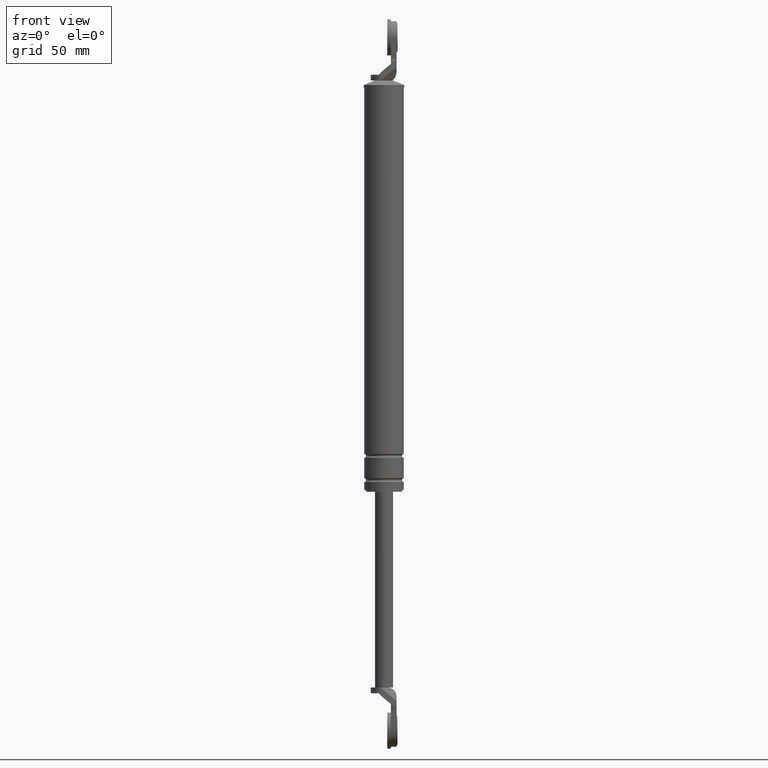
[diagram: clean part render]
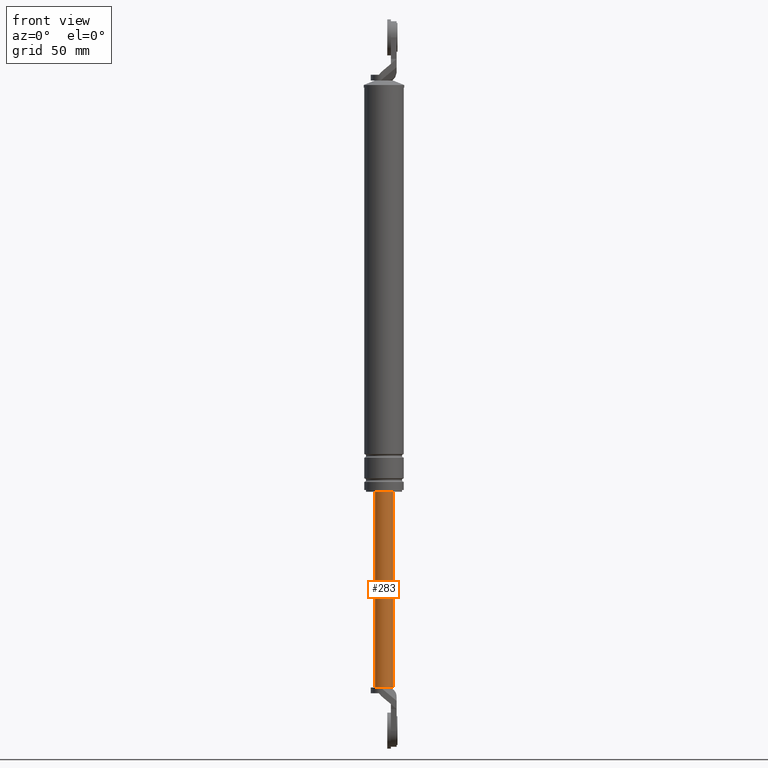
[diagram: same view with one face highlighted and labeled with its STEP entity id]
A machine part, front view. The second image highlights one B-rep face of the part: STEP entity #283.
In plain terms, the highlighted cylindrical surface (edge-blend (fillet) strip) has radius 5 mm, axis along (0, 0, 1).
Its self-contained STEP definition (entity closure, byte-faithful):
#283=ADVANCED_FACE('',(#1087),#1086,.T.);
#1086=CYLINDRICAL_SURFACE('',#1750,5.00000000000E+000);
#1087=FACE_OUTER_BOUND('',#1751,.T.);
#1747=CARTESIAN_POINT('',(0.00000000000E+000,3.58204186421E-014,0.00000000000E+000));
#1748=DIRECTION('',(-0.00000000000E+000,-0.00000000000E+000,1.00000000000E+000));
#1749=DIRECTION('',(1.00000000000E+000,0.00000000000E+000,0.00000000000E+000));
#1750=AXIS2_PLACEMENT_3D('',#1747,#1748,#1749);
#1751=EDGE_LOOP('',(#2145,#2146,#2147,#2148,#2149));
#2145=ORIENTED_EDGE('',*,*,#2350,.F.);
#2146=ORIENTED_EDGE('',*,*,#2323,.F.);
#2147=ORIENTED_EDGE('',*,*,#2352,.T.);
#2148=ORIENTED_EDGE('',*,*,#2317,.F.);
#2149=ORIENTED_EDGE('',*,*,#2353,.F.);
#2317=EDGE_CURVE('',#3417,#3418,#3419,.T.);
#2323=EDGE_CURVE('',#3453,#3432,#3460,.T.);
#2350=EDGE_CURVE('',#3432,#3633,#3634,.T.);
#2352=EDGE_CURVE('',#3453,#3418,#3646,.T.);
#2353=EDGE_CURVE('',#3633,#3417,#3652,.T.);
#3417=VERTEX_POINT('',#4322);
#3418=VERTEX_POINT('',#4323);
#3419=CIRCLE('',#4327,5.00000000000E+000);
#3432=VERTEX_POINT('',#4333);
#3453=VERTEX_POINT('',#4346);
#3460=CIRCLE('',#4354,5.00000000000E+000);
#3633=VERTEX_POINT('',#4449);
#3634=CIRCLE('',#4453,5.00000000000E+000);
#3646=(BOUNDED_CURVE() B_SPLINE_CURVE(1,(#4458,#4459),.UNSPECIFIED.,.F.,.F.) B_SPLINE_CURVE_WITH_KNOTS((2,2),(7.75193799282E-002,9.22480620316E-001),.UNSPECIFIED.) CURVE() GEOMETRIC_REPRESENTATION_ITEM() RATIONAL_B_SPLINE_CURVE((1.00000000000E+000,1.00000000000E+000)) REPRESENTATION_ITEM('') );
#3652=(BOUNDED_CURVE() B_SPLINE_CURVE(1,(#4460,#4461),.UNSPECIFIED.,.F.,.F.) B_SPLINE_CURVE_WITH_KNOTS((2,2),(7.75193798450E-002,9.22480620155E-001),.UNSPECIFIED.) CURVE() GEOMETRIC_REPRESENTATION_ITEM() RATIONAL_B_SPLINE_CURVE((7.50000000000E-001,7.50000000000E-001)) REPRESENTATION_ITEM('') );
#4322=CARTESIAN_POINT('',(-5.00000000000E+000,3.58204186421E-014,-1.40000015000E+002));
#4323=CARTESIAN_POINT('',(5.00000000000E+000,3.61192557345E-014,-1.40000015000E+002));
#4324=CARTESIAN_POINT('',(0.00000000000E+000,3.58204186421E-014,-1.40000015000E+002));
#4325=DIRECTION('',(0.00000000000E+000,0.00000000000E+000,1.00000000000E+000));
#4326=DIRECTION('',(-1.00000000000E+000,-1.22460635382E-016,0.00000000000E+000));
#4327=AXIS2_PLACEMENT_3D('',#4324,#4325,#4326);
#4333=CARTESIAN_POINT('',(2.00000000000E+000,-4.58257569496E+000,-2.49000015000E+002));
#4346=CARTESIAN_POINT('',(5.00000000000E+000,1.01515834226E-011,-2.49000015000E+002));
#4351=CARTESIAN_POINT('',(0.00000000000E+000,3.58204186421E-014,-2.49000015000E+002));
#4352=DIRECTION('',(0.00000000000E+000,0.00000000000E+000,-1.00000000000E+000));
#4353=DIRECTION('',(4.00000000000E-001,9.16515138991E-001,0.00000000000E+000));
#4354=AXIS2_PLACEMENT_3D('',#4351,#4352,#4353);
#4449=CARTESIAN_POINT('',(-5.00000000000E+000,8.97827335911E-007,-2.49000015000E+002));
#4450=CARTESIAN_POINT('',(0.00000000000E+000,3.58204186421E-014,-2.49000015000E+002));
#4451=DIRECTION('',(0.00000000000E+000,0.00000000000E+000,-1.00000000000E+000));
#4452=DIRECTION('',(1.00000000000E+000,-0.00000000000E+000,-0.00000000000E+000));
#4453=AXIS2_PLACEMENT_3D('',#4450,#4451,#4452);
#4458=CARTESIAN_POINT('',(5.00000000000E+000,3.58204186421E-014,-2.49000014989E+002));
#4459=CARTESIAN_POINT('',(5.00000000000E+000,3.58204186421E-014,-1.40000014979E+002));
#4460=CARTESIAN_POINT('',(-5.00000000000E+000,3.55271367880E-014,-2.49000015000E+002));
#4461=CARTESIAN_POINT('',(-5.00000000000E+000,3.55271367880E-014,-1.40000015000E+002));